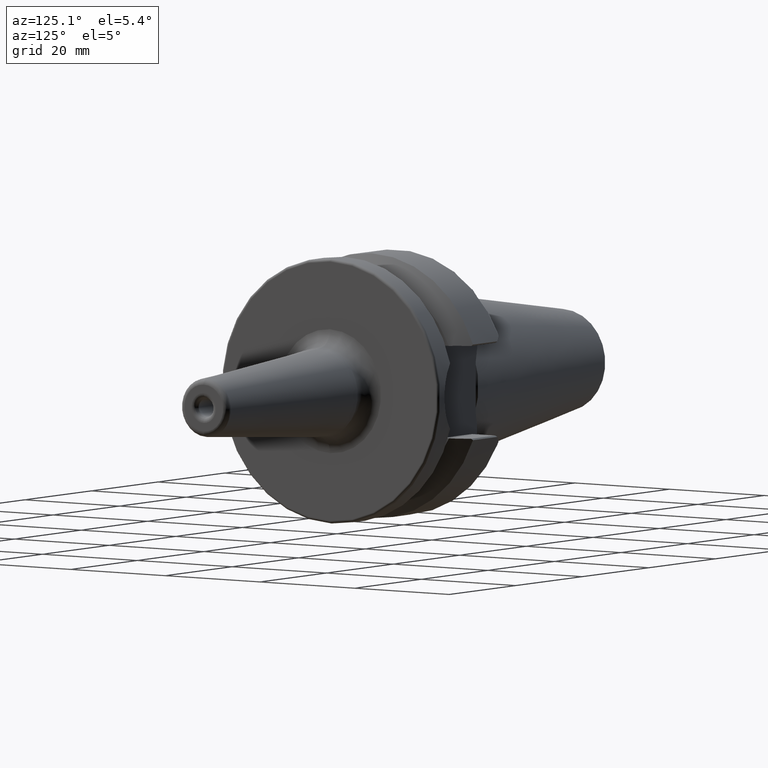
[diagram: clean part render]
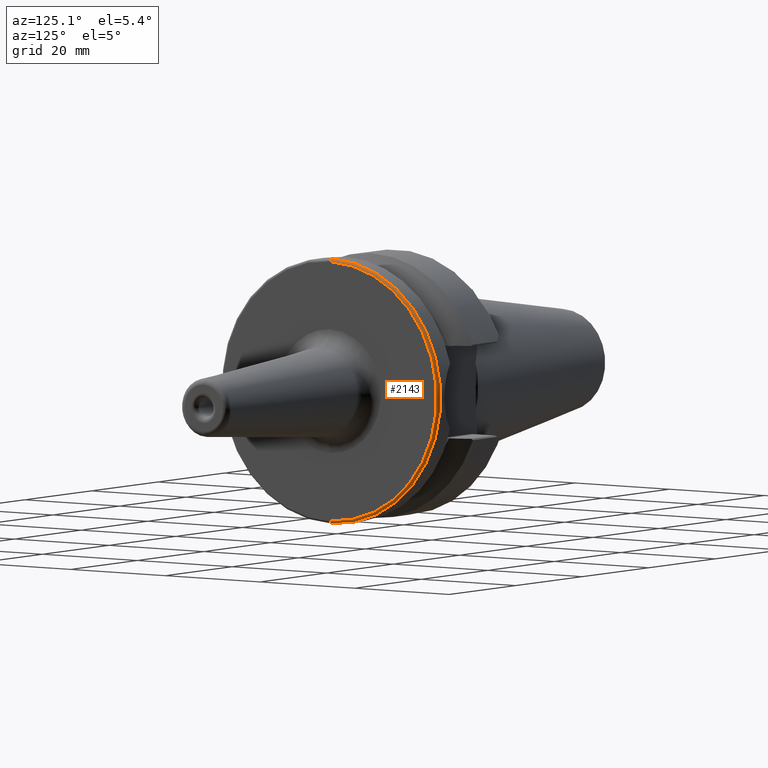
[diagram: same view with one face highlighted and labeled with its STEP entity id]
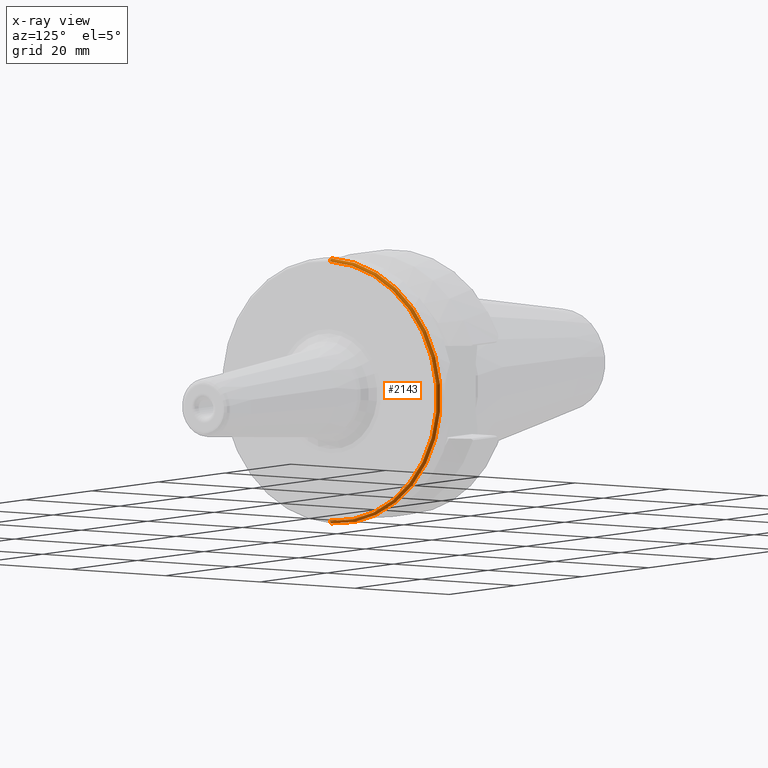
[diagram: x-ray of the same camera — body ghosted, the highlighted face saturated]
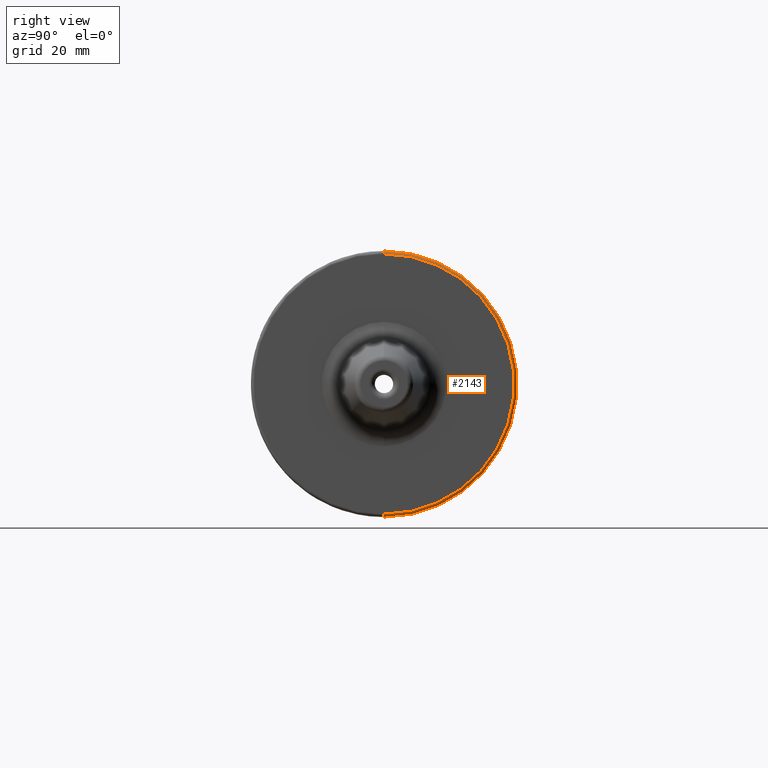
[diagram: same view with one face highlighted and labeled with its STEP entity id]
A machine part, auxiliary view. The second image highlights one B-rep face of the part: STEP entity #2143.
The next image is the same camera in x-ray: the body ghosted, the highlighted face saturated — about 0% of this face is hidden behind the body in this view.
A second angle (right view) of the same face is appended — the face is thin or edge-on in the first view.
In plain terms, the highlighted toroidal blend (fillet) surface has major radius 22.5 mm and minor (blend) radius 0.5 mm.
Its self-contained STEP definition (entity closure, byte-faithful):
#435=CARTESIAN_POINT('',(2.2E1,0.E0,0.E0));
#436=DIRECTION('',(1.E0,0.E0,0.E0));
#437=DIRECTION('',(0.E0,0.E0,-1.E0));
#438=AXIS2_PLACEMENT_3D('',#435,#436,#437);
#450=CARTESIAN_POINT('',(2.15E1,0.E0,2.25E1));
#451=DIRECTION('',(0.E0,-1.E0,0.E0));
#452=DIRECTION('',(1.E0,0.E0,0.E0));
#453=AXIS2_PLACEMENT_3D('',#450,#451,#452);
#455=CARTESIAN_POINT('',(2.15E1,0.E0,-2.25E1));
#456=DIRECTION('',(0.E0,1.E0,0.E0));
#457=DIRECTION('',(1.E0,0.E0,-1.421085471520E-14));
#458=AXIS2_PLACEMENT_3D('',#455,#456,#457);
#518=CARTESIAN_POINT('',(2.15E1,0.E0,0.E0));
#519=DIRECTION('',(1.E0,0.E0,0.E0));
#520=DIRECTION('',(0.E0,0.E0,-1.E0));
#521=AXIS2_PLACEMENT_3D('',#518,#519,#520);
#1192=CARTESIAN_POINT('',(2.2E1,0.E0,2.25E1));
#1193=CARTESIAN_POINT('',(2.2E1,0.E0,-2.25E1));
#1194=VERTEX_POINT('',#1192);
#1195=VERTEX_POINT('',#1193);
#1196=CARTESIAN_POINT('',(2.15E1,0.E0,2.3E1));
#1197=CARTESIAN_POINT('',(2.15E1,0.E0,-2.3E1));
#1198=VERTEX_POINT('',#1196);
#1199=VERTEX_POINT('',#1197);
#2131=CARTESIAN_POINT('',(2.15E1,0.E0,0.E0));
#2132=DIRECTION('',(1.E0,0.E0,0.E0));
#2133=DIRECTION('',(0.E0,-6.409356867113E-3,-9.999794598613E-1));
#2134=AXIS2_PLACEMENT_3D('',#2131,#2132,#2133);
#2135=TOROIDAL_SURFACE('',#2134,2.25E1,5.E-1);
#2136=ORIENTED_EDGE('',*,*,#2106,.T.);
#2137=ORIENTED_EDGE('',*,*,#2126,.T.);
#2139=ORIENTED_EDGE('',*,*,#2138,.F.);
#2140=ORIENTED_EDGE('',*,*,#2122,.F.);
#2141=EDGE_LOOP('',(#2136,#2137,#2139,#2140));
#2142=FACE_OUTER_BOUND('',#2141,.F.);
#2143=ADVANCED_FACE('',(#2142),#2135,.T.);
#439=CIRCLE('',#438,2.25E1);
#454=CIRCLE('',#453,5.E-1);
#459=CIRCLE('',#458,5.E-1);
#522=CIRCLE('',#521,2.3E1);
#2106=EDGE_CURVE('',#1195,#1194,#439,.T.);
#2122=EDGE_CURVE('',#1195,#1199,#459,.T.);
#2126=EDGE_CURVE('',#1194,#1198,#454,.T.);
#2138=EDGE_CURVE('',#1199,#1198,#522,.T.);